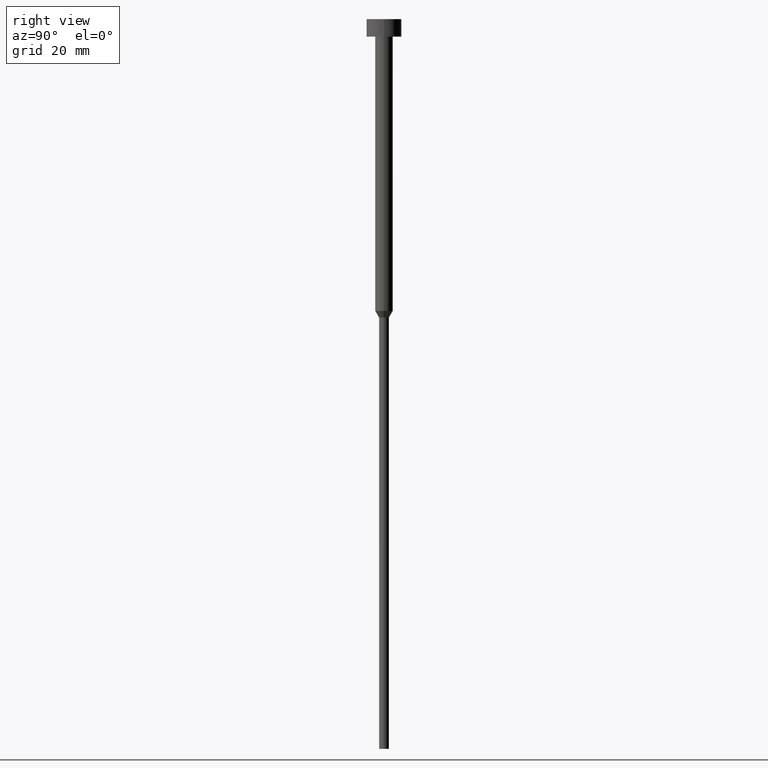
[diagram: clean part render]
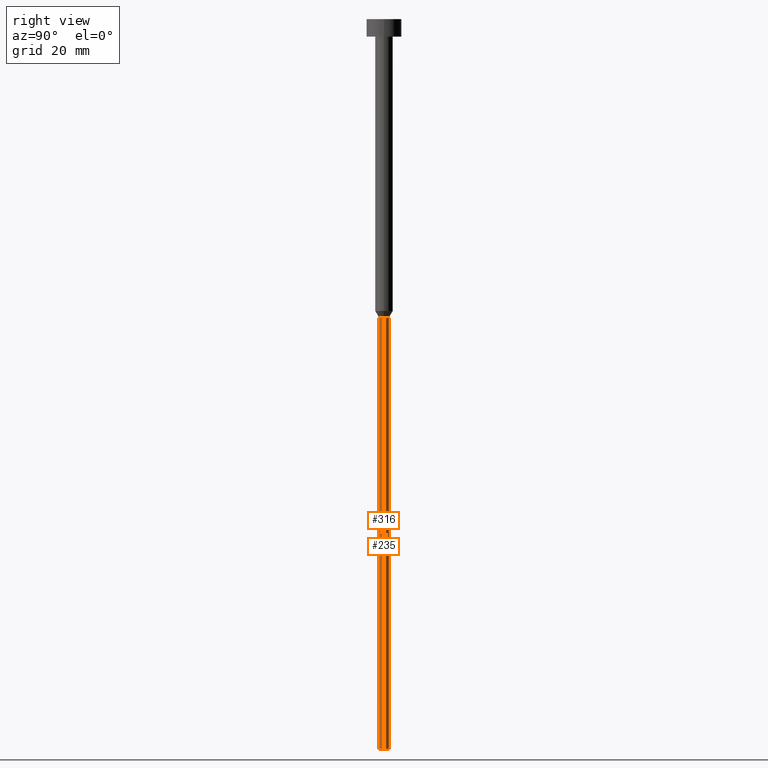
[diagram: same view with one multi-face feature highlighted, each face labeled with its STEP entity id]
A machine part, right view. The highlighted faces form ONE feature: a constant-radius fillet chain: 2 tangent blend faces with common blend radius 0.85 mm. The faces share edges in the B-rep.
Their STEP definitions:
[1] entity #316 (Cylinder):
#3 = DIRECTION ( 'NONE',  ( -0.000000000000000000, -0.000000000000000000, 1.000000000000000000 ) ) ;
#22 = CARTESIAN_POINT ( 'NONE',  ( 0.8499999999999998668, 0.000000000000000000, 0.000000000000000000 ) ) ;
#30 = EDGE_CURVE ( 'NONE', #71, #230, #346, .T. ) ;
#31 = FACE_OUTER_BOUND ( 'NONE', #45, .T. ) ;
#43 = ORIENTED_EDGE ( 'NONE', *, *, #30, .T. ) ;
#45 = EDGE_LOOP ( 'NONE', ( #74, #94, #43, #264 ) ) ;
#51 = CIRCLE ( 'NONE', #247, 0.8499999999999998668 ) ;
#55 = EDGE_CURVE ( 'NONE', #279, #101, #241, .T. ) ;
#56 = DIRECTION ( 'NONE',  ( 1.000000000000000000, 0.000000000000000000, 0.000000000000000000 ) ) ;
#71 = VERTEX_POINT ( 'NONE', #136 ) ;
#74 = ORIENTED_EDGE ( 'NONE', *, *, #55, .F. ) ;
#80 = DIRECTION ( 'NONE',  ( -0.000000000000000000, -0.000000000000000000, 1.000000000000000000 ) ) ;
#84 = CARTESIAN_POINT ( 'NONE',  ( -0.8499999999999998668, 1.040949779275250017E-16, -125.0000000000000000 ) ) ;
#86 = DIRECTION ( 'NONE',  ( -0.000000000000000000, -0.000000000000000000, 1.000000000000000000 ) ) ;
#94 = ORIENTED_EDGE ( 'NONE', *, *, #119, .T. ) ;
#100 = VECTOR ( 'NONE', #183, 1000.000000000000000 ) ;
#101 = VERTEX_POINT ( 'NONE', #349 ) ;
#114 = CYLINDRICAL_SURFACE ( 'NONE', #353, 0.8499999999999998668 ) ;
#115 = CIRCLE ( 'NONE', #312, 0.8499999999999998668 ) ;
#119 = EDGE_CURVE ( 'NONE', #279, #71, #51, .T. ) ;
#131 = CARTESIAN_POINT ( 'NONE',  ( 0.000000000000000000, 0.000000000000000000, -51.12583302491977122 ) ) ;
#132 = VECTOR ( 'NONE', #240, 1000.000000000000000 ) ;
#136 = CARTESIAN_POINT ( 'NONE',  ( 0.8499999999999998668, 0.000000000000000000, -125.0000000000000000 ) ) ;
#183 = DIRECTION ( 'NONE',  ( -0.000000000000000000, -0.000000000000000000, 1.000000000000000000 ) ) ;
#187 = EDGE_CURVE ( 'NONE', #101, #230, #115, .T. ) ;
#230 = VERTEX_POINT ( 'NONE', #330 ) ;
#240 = DIRECTION ( 'NONE',  ( -0.000000000000000000, -0.000000000000000000, 1.000000000000000000 ) ) ;
#241 = LINE ( 'NONE', #265, #132 ) ;
#247 = AXIS2_PLACEMENT_3D ( 'NONE', #295, #80, #299 ) ;
#264 = ORIENTED_EDGE ( 'NONE', *, *, #187, .F. ) ;
#265 = CARTESIAN_POINT ( 'NONE',  ( -0.8499999999999998668, 1.040949779275250017E-16, 0.000000000000000000 ) ) ;
#277 = DIRECTION ( 'NONE',  ( 1.000000000000000000, 0.000000000000000000, 0.000000000000000000 ) ) ;
#279 = VERTEX_POINT ( 'NONE', #84 ) ;
#295 = CARTESIAN_POINT ( 'NONE',  ( 0.000000000000000000, 0.000000000000000000, -125.0000000000000000 ) ) ;
#299 = DIRECTION ( 'NONE',  ( 1.000000000000000000, 0.000000000000000000, 0.000000000000000000 ) ) ;
#301 = CARTESIAN_POINT ( 'NONE',  ( 0.000000000000000000, 0.000000000000000000, 0.000000000000000000 ) ) ;
#312 = AXIS2_PLACEMENT_3D ( 'NONE', #131, #3, #277 ) ;
#316 = ADVANCED_FACE ( 'NONE', ( #31 ), #114, .T. ) ;
#330 = CARTESIAN_POINT ( 'NONE',  ( 0.8499999999999998668, 0.000000000000000000, -51.12583302491977122 ) ) ;
#346 = LINE ( 'NONE', #22, #100 ) ;
#349 = CARTESIAN_POINT ( 'NONE',  ( -0.8499999999999998668, 1.040949779275250017E-16, -51.12583302491977122 ) ) ;
#353 = AXIS2_PLACEMENT_3D ( 'NONE', #301, #86, #56 ) ;
[2] entity #235 (Cylinder):
#1 = CYLINDRICAL_SURFACE ( 'NONE', #160, 0.8499999999999998668 ) ;
#22 = CARTESIAN_POINT ( 'NONE',  ( 0.8499999999999998668, 0.000000000000000000, 0.000000000000000000 ) ) ;
#30 = EDGE_CURVE ( 'NONE', #71, #230, #346, .T. ) ;
#55 = EDGE_CURVE ( 'NONE', #279, #101, #241, .T. ) ;
#61 = ORIENTED_EDGE ( 'NONE', *, *, #228, .T. ) ;
#62 = DIRECTION ( 'NONE',  ( -0.000000000000000000, -0.000000000000000000, 1.000000000000000000 ) ) ;
#63 = AXIS2_PLACEMENT_3D ( 'NONE', #78, #236, #182 ) ;
#71 = VERTEX_POINT ( 'NONE', #136 ) ;
#73 = EDGE_LOOP ( 'NONE', ( #61, #152, #205, #232 ) ) ;
#78 = CARTESIAN_POINT ( 'NONE',  ( 0.000000000000000000, 0.000000000000000000, -51.12583302491977122 ) ) ;
#81 = CIRCLE ( 'NONE', #176, 0.8499999999999998668 ) ;
#84 = CARTESIAN_POINT ( 'NONE',  ( -0.8499999999999998668, 1.040949779275250017E-16, -125.0000000000000000 ) ) ;
#100 = VECTOR ( 'NONE', #183, 1000.000000000000000 ) ;
#101 = VERTEX_POINT ( 'NONE', #349 ) ;
#132 = VECTOR ( 'NONE', #240, 1000.000000000000000 ) ;
#136 = CARTESIAN_POINT ( 'NONE',  ( 0.8499999999999998668, 0.000000000000000000, -125.0000000000000000 ) ) ;
#140 = CIRCLE ( 'NONE', #63, 0.8499999999999998668 ) ;
#152 = ORIENTED_EDGE ( 'NONE', *, *, #55, .T. ) ;
#156 = EDGE_CURVE ( 'NONE', #230, #101, #140, .T. ) ;
#160 = AXIS2_PLACEMENT_3D ( 'NONE', #248, #62, #246 ) ;
#176 = AXIS2_PLACEMENT_3D ( 'NONE', #276, #304, #244 ) ;
#182 = DIRECTION ( 'NONE',  ( 1.000000000000000000, 0.000000000000000000, 0.000000000000000000 ) ) ;
#183 = DIRECTION ( 'NONE',  ( -0.000000000000000000, -0.000000000000000000, 1.000000000000000000 ) ) ;
#205 = ORIENTED_EDGE ( 'NONE', *, *, #156, .F. ) ;
#222 = FACE_OUTER_BOUND ( 'NONE', #73, .T. ) ;
#228 = EDGE_CURVE ( 'NONE', #71, #279, #81, .T. ) ;
#230 = VERTEX_POINT ( 'NONE', #330 ) ;
#232 = ORIENTED_EDGE ( 'NONE', *, *, #30, .F. ) ;
#235 = ADVANCED_FACE ( 'NONE', ( #222 ), #1, .T. ) ;
#236 = DIRECTION ( 'NONE',  ( -0.000000000000000000, -0.000000000000000000, 1.000000000000000000 ) ) ;
#240 = DIRECTION ( 'NONE',  ( -0.000000000000000000, -0.000000000000000000, 1.000000000000000000 ) ) ;
#241 = LINE ( 'NONE', #265, #132 ) ;
#244 = DIRECTION ( 'NONE',  ( 1.000000000000000000, 0.000000000000000000, 0.000000000000000000 ) ) ;
#246 = DIRECTION ( 'NONE',  ( 1.000000000000000000, 0.000000000000000000, 0.000000000000000000 ) ) ;
#248 = CARTESIAN_POINT ( 'NONE',  ( 0.000000000000000000, 0.000000000000000000, 0.000000000000000000 ) ) ;
#265 = CARTESIAN_POINT ( 'NONE',  ( -0.8499999999999998668, 1.040949779275250017E-16, 0.000000000000000000 ) ) ;
#276 = CARTESIAN_POINT ( 'NONE',  ( 0.000000000000000000, 0.000000000000000000, -125.0000000000000000 ) ) ;
#279 = VERTEX_POINT ( 'NONE', #84 ) ;
#304 = DIRECTION ( 'NONE',  ( -0.000000000000000000, -0.000000000000000000, 1.000000000000000000 ) ) ;
#330 = CARTESIAN_POINT ( 'NONE',  ( 0.8499999999999998668, 0.000000000000000000, -51.12583302491977122 ) ) ;
#346 = LINE ( 'NONE', #22, #100 ) ;
#349 = CARTESIAN_POINT ( 'NONE',  ( -0.8499999999999998668, 1.040949779275250017E-16, -51.12583302491977122 ) ) ;